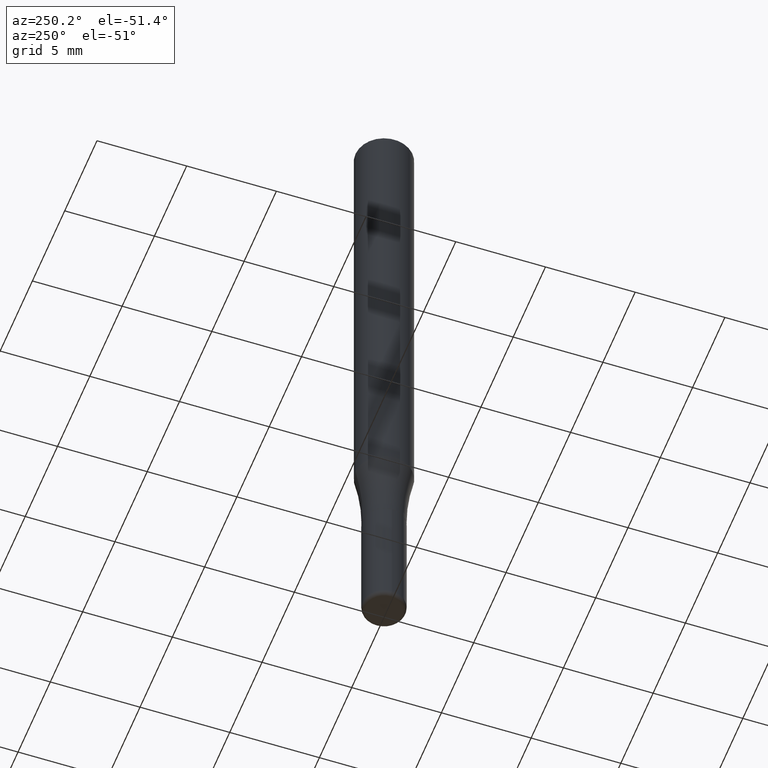
[diagram: clean part render]
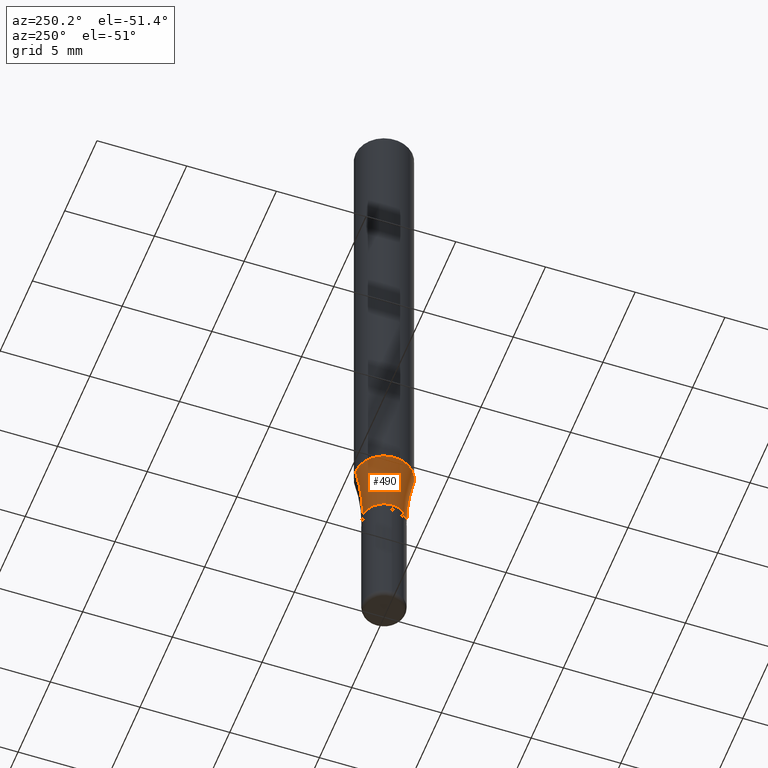
[diagram: same view with one face highlighted and labeled with its STEP entity id]
A machine part, auxiliary view. The second image highlights one B-rep face of the part: STEP entity #490.
In plain terms, the highlighted toroidal blend (fillet) surface has major radius 17.0663 mm and minor (blend) radius 15.875 mm.
Its self-contained STEP definition (entity closure, byte-faithful):
#2 = DIRECTION ( 'NONE',  ( -2.446042075129880699E-29, 3.490660385085830172E-15, 1.000000000000000000 ) ) ;
#17 = ORIENTED_EDGE ( 'NONE', *, *, #255, .T. ) ;
#44 = DIRECTION ( 'NONE',  ( -6.982962677686268288E-15, -1.000000000000000000, 0.000000000000000000 ) ) ;
#49 = FACE_OUTER_BOUND ( 'NONE', #419, .T. ) ;
#81 = DIRECTION ( 'NONE',  ( -1.000000000000000000, 6.982962677686265922E-15, -4.883557194083112901E-29 ) ) ;
#86 = ORIENTED_EDGE ( 'NONE', *, *, #130, .T. ) ;
#126 = AXIS2_PLACEMENT_3D ( 'NONE', #127, #290, #203 ) ;
#127 = CARTESIAN_POINT ( 'NONE',  ( 2.946789911453088792E-29, -4.207235013305989262E-15, -1.204999999999999627 ) ) ;
#130 = EDGE_CURVE ( 'NONE', #377, #299, #426, .T. ) ;
#134 = DIRECTION ( 'NONE',  ( -2.446042075129880699E-29, 3.490660385085830172E-15, 1.000000000000000000 ) ) ;
#138 = CARTESIAN_POINT ( 'NONE',  ( 2.947480700531505554E-29, -4.206245764028424746E-15, -1.204999999999999849 ) ) ;
#150 = AXIS2_PLACEMENT_3D ( 'NONE', #480, #354, #316 ) ;
#165 = DIRECTION ( 'NONE',  ( -6.982962677686265922E-15, -1.000000000000000000, 4.370956789862820361E-15 ) ) ;
#189 = CARTESIAN_POINT ( 'NONE',  ( -4.364351673553649961E-16, -0.06250000000000369149, -1.066231703908996575 ) ) ;
#203 = DIRECTION ( 'NONE',  ( -6.982962677686265133E-15, -1.000000000000000000, 3.490660385085830567E-15 ) ) ;
#207 = AXIS2_PLACEMENT_3D ( 'NONE', #138, #134, #382 ) ;
#225 = VERTEX_POINT ( 'NONE', #514 ) ;
#229 = CARTESIAN_POINT ( 'NONE',  ( -3.275009495834553341E-16, -0.04690000000000405650, -1.204999999999999627 ) ) ;
#248 = VERTEX_POINT ( 'NONE', #189 ) ;
#255 = EDGE_CURVE ( 'NONE', #225, #377, #375, .T. ) ;
#288 = AXIS2_PLACEMENT_3D ( 'NONE', #313, #81, #44 ) ;
#290 = DIRECTION ( 'NONE',  ( -2.446042075129880699E-29, 3.490660385085830172E-15, 1.000000000000000000 ) ) ;
#299 = VERTEX_POINT ( 'NONE', #229 ) ;
#304 = EDGE_CURVE ( 'NONE', #248, #299, #484, .T. ) ;
#313 = CARTESIAN_POINT ( 'NONE',  ( -4.691852623137371831E-15, -0.6719000000000041606, -1.204999999999997407 ) ) ;
#316 = DIRECTION ( 'NONE',  ( 7.105427357601001859E-15, 1.000000000000000000, 0.000000000000000000 ) ) ;
#320 = ORIENTED_EDGE ( 'NONE', *, *, #432, .F. ) ;
#354 = DIRECTION ( 'NONE',  ( 1.000000000000000000, -7.105427357601001070E-15, 4.926305454758171006E-29 ) ) ;
#362 = CARTESIAN_POINT ( 'NONE',  ( 2.608047609598831020E-29, -3.721852770157700213E-15, -1.066231703908996797 ) ) ;
#366 = CIRCLE ( 'NONE', #497, 0.06250000000000001388 ) ;
#375 = CIRCLE ( 'NONE', #150, 0.6250000000000000000 ) ;
#377 = VERTEX_POINT ( 'NONE', #407 ) ;
#382 = DIRECTION ( 'NONE',  ( -6.982962677686266711E-15, -1.000000000000000000, 2.912417903693253965E-15 ) ) ;
#407 = CARTESIAN_POINT ( 'NONE',  ( 3.886668764608021062E-16, 0.04689999999999563962, -1.205000000000000071 ) ) ;
#419 = EDGE_LOOP ( 'NONE', ( #320, #17, #86, #498 ) ) ;
#426 = CIRCLE ( 'NONE', #207, 0.04689999999999984459 ) ;
#432 = EDGE_CURVE ( 'NONE', #225, #248, #366, .T. ) ;
#446 = TOROIDAL_SURFACE ( 'NONE', #126, 0.6718999999999998307, 0.6250000000000000000 ) ;
#480 = CARTESIAN_POINT ( 'NONE',  ( 4.774136641572140345E-15, 0.6718999999999956119, -1.205000000000002069 ) ) ;
#484 = CIRCLE ( 'NONE', #288, 0.6250000000000000000 ) ;
#490 = ADVANCED_FACE ( 'NONE', ( #49 ), #446, .F. ) ;
#497 = AXIS2_PLACEMENT_3D ( 'NONE', #362, #2, #165 ) ;
#498 = ORIENTED_EDGE ( 'NONE', *, *, #304, .F. ) ;
#514 = CARTESIAN_POINT ( 'NONE',  ( 4.440892098500884514E-16, 0.06249999999999630851, -1.066231703908997241 ) ) ;